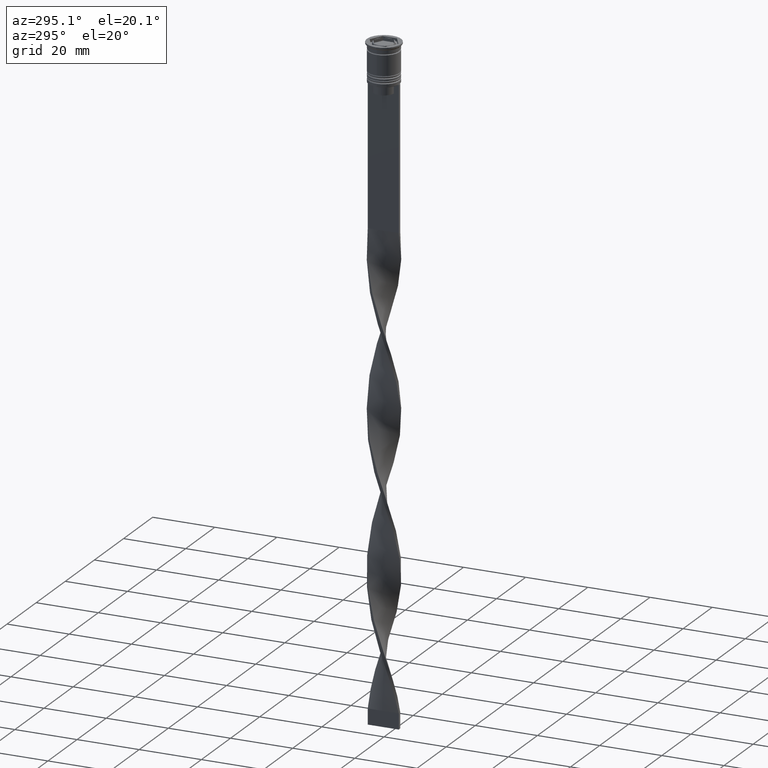
[diagram: clean part render]
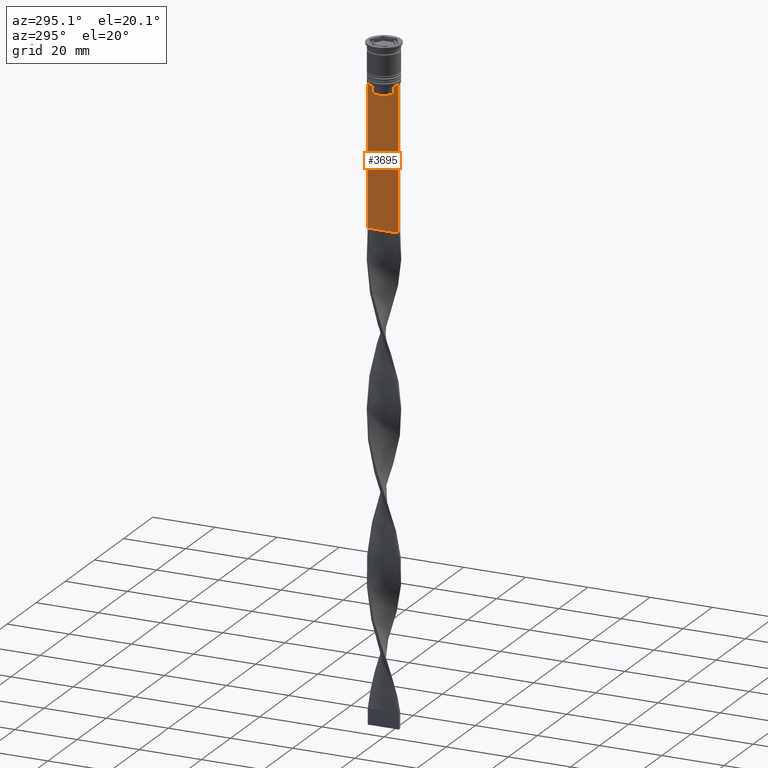
[diagram: same view with one face highlighted and labeled with its STEP entity id]
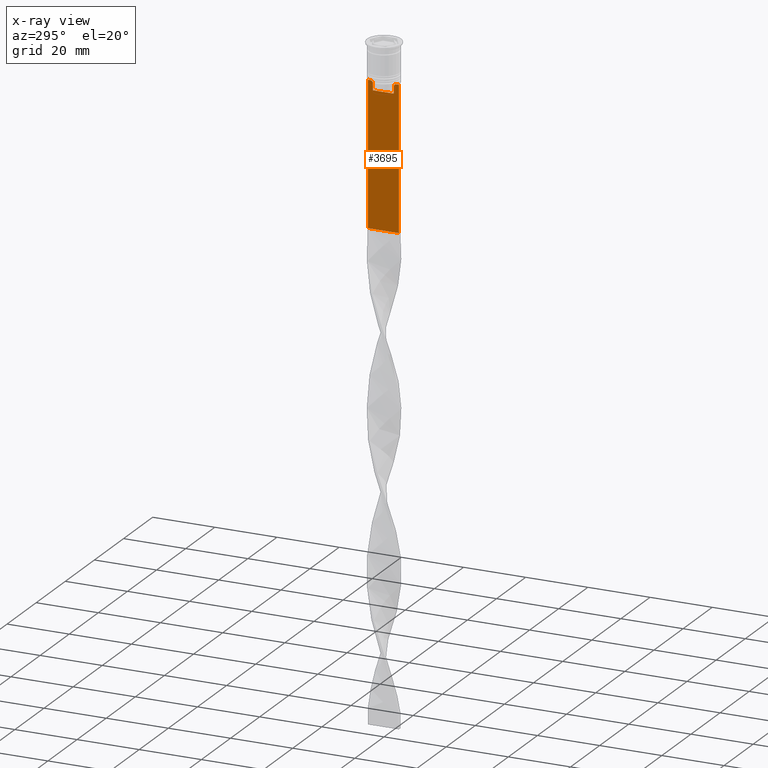
[diagram: x-ray of the same camera — body ghosted, the highlighted face saturated]
A machine part, auxiliary view. The second image highlights one B-rep face of the part: STEP entity #3695.
The next image is the same camera in x-ray: the body ghosted, the highlighted face saturated — about 0% of this face is hidden behind the body in this view.
In plain terms, the highlighted planar face has unit normal (-1, 0, 0).
Its self-contained STEP definition (entity closure, byte-faithful):
#18 = VECTOR ( 'NONE', #549, 1000.000000000000000 ) ;
#46 = LINE ( 'NONE', #2170, #351 ) ;
#65 = CARTESIAN_POINT ( 'NONE',  ( -0.5000000000000000000, 5.000000000000000888, -58.50000000000000000 ) ) ;
#75 = ORIENTED_EDGE ( 'NONE', *, *, #705, .F. ) ;
#155 = VECTOR ( 'NONE', #3729, 1000.000000000000000 ) ;
#184 = ORIENTED_EDGE ( 'NONE', *, *, #2067, .F. ) ;
#202 = LINE ( 'NONE', #2323, #3491 ) ;
#351 = VECTOR ( 'NONE', #3640, 1000.000000000000000 ) ;
#353 = VECTOR ( 'NONE', #468, 1000.000000000000000 ) ;
#407 = VERTEX_POINT ( 'NONE', #65 ) ;
#422 = CARTESIAN_POINT ( 'NONE',  ( -0.5000000000000000000, 3.363034344160045208, -13.00000000000000178 ) ) ;
#458 = LINE ( 'NONE', #1671, #541 ) ;
#468 = DIRECTION ( 'NONE',  ( 0.000000000000000000, -1.000000000000000000, 0.000000000000000000 ) ) ;
#487 = EDGE_CURVE ( 'NONE', #882, #2302, #46, .T. ) ;
#541 = VECTOR ( 'NONE', #2893, 1000.000000000000000 ) ;
#549 = DIRECTION ( 'NONE',  ( 0.000000000000000000, 1.000000000000000000, 0.000000000000000000 ) ) ;
#560 = B_SPLINE_CURVE_WITH_KNOTS ( 'NONE', 3,
 ( #1129, #1460, #810, #2319 ),
 .UNSPECIFIED., .F., .F.,
 ( 4, 4 ),
 ( 0.006644825462451552783, 0.007355321358912435097 ),
 .UNSPECIFIED. ) ;
#581 = VERTEX_POINT ( 'NONE', #2576 ) ;
#634 = ORIENTED_EDGE ( 'NONE', *, *, #3156, .F. ) ;
#647 = CARTESIAN_POINT ( 'NONE',  ( -0.5000000000000000000, -4.999999999999999112, -58.50000000000000000 ) ) ;
#699 = CARTESIAN_POINT ( 'NONE',  ( -0.5000000000000000000, 3.399999999999998135, -15.50000000000000000 ) ) ;
#705 = EDGE_CURVE ( 'NONE', #945, #882, #560, .T. ) ;
#747 = LINE ( 'NONE', #2853, #353 ) ;
#810 = CARTESIAN_POINT ( 'NONE',  ( -0.5000000000000000000, 3.531412678228260216, -12.83345231756357840 ) ) ;
#815 = LINE ( 'NONE', #1791, #3356 ) ;
#875 = CARTESIAN_POINT ( 'NONE',  ( -0.5000000000000000000, -4.999999999999999112, -12.50000000000000000 ) ) ;
#882 = VERTEX_POINT ( 'NONE', #422 ) ;
#945 = VERTEX_POINT ( 'NONE', #1656 ) ;
#1097 = CARTESIAN_POINT ( 'NONE',  ( -0.5000000000000000000, -3.363034344160045208, -13.00000000000000178 ) ) ;
#1123 = EDGE_CURVE ( 'NONE', #3910, #407, #815, .T. ) ;
#1129 = CARTESIAN_POINT ( 'NONE',  ( -0.5000000000000000000, 3.867815921162742754, -12.50000000000000000 ) ) ;
#1145 = EDGE_CURVE ( 'NONE', #1498, #581, #2615, .T. ) ;
#1203 = ORIENTED_EDGE ( 'NONE', *, *, #1276, .F. ) ;
#1216 = VERTEX_POINT ( 'NONE', #647 ) ;
#1233 = ORIENTED_EDGE ( 'NONE', *, *, #1546, .F. ) ;
#1276 = EDGE_CURVE ( 'NONE', #581, #2254, #202, .T. ) ;
#1286 = ORIENTED_EDGE ( 'NONE', *, *, #2810, .F. ) ;
#1327 = EDGE_CURVE ( 'NONE', #1698, #945, #3927, .T. ) ;
#1441 = CARTESIAN_POINT ( 'NONE',  ( -0.5000000000000000000, -4.999999999999999112, -58.50000000000000000 ) ) ;
#1460 = CARTESIAN_POINT ( 'NONE',  ( -0.5000000000000000000, 3.699657965831574913, -12.66677026074361301 ) ) ;
#1466 = CARTESIAN_POINT ( 'NONE',  ( -0.5000000000000000000, 4.874423042781575788, -12.50000000000000000 ) ) ;
#1498 = VERTEX_POINT ( 'NONE', #1097 ) ;
#1520 = EDGE_LOOP ( 'NONE', ( #75, #3601, #3325, #1548, #1286, #2631, #634, #1203, #1738, #1233, #184, #3712 ) ) ;
#1545 = LINE ( 'NONE', #3745, #1558 ) ;
#1546 = EDGE_CURVE ( 'NONE', #3937, #1498, #458, .T. ) ;
#1548 = ORIENTED_EDGE ( 'NONE', *, *, #1123, .T. ) ;
#1558 = VECTOR ( 'NONE', #3440, 1000.000000000000000 ) ;
#1578 = CARTESIAN_POINT ( 'NONE',  ( -0.5000000000000000000, -4.999999999999999112, -2.450124378879110054 ) ) ;
#1656 = CARTESIAN_POINT ( 'NONE',  ( -0.5000000000000000000, 3.867815921162742754, -12.50000000000000000 ) ) ;
#1671 = CARTESIAN_POINT ( 'NONE',  ( -0.5000000000000000000, -3.363034344160045208, 0.000000000000000000 ) ) ;
#1698 = VERTEX_POINT ( 'NONE', #1466 ) ;
#1738 = ORIENTED_EDGE ( 'NONE', *, *, #1145, .F. ) ;
#1791 = CARTESIAN_POINT ( 'NONE',  ( -0.5000000000000000000, 5.000000000000000888, -2.450124378879110054 ) ) ;
#2011 = CARTESIAN_POINT ( 'NONE',  ( -0.5000000000000000000, -3.363034344160045208, -13.00000000000000178 ) ) ;
#2067 = EDGE_CURVE ( 'NONE', #2302, #3937, #3751, .T. ) ;
#2109 = LINE ( 'NONE', #1441, #18 ) ;
#2116 = VERTEX_POINT ( 'NONE', #2861 ) ;
#2170 = CARTESIAN_POINT ( 'NONE',  ( -0.5000000000000000000, 3.363034344160045208, 0.000000000000000000 ) ) ;
#2254 = VERTEX_POINT ( 'NONE', #2279 ) ;
#2279 = CARTESIAN_POINT ( 'NONE',  ( -0.5000000000000000000, -4.874423042781575788, -12.50000000000000000 ) ) ;
#2292 = PLANE ( 'NONE',  #3173 ) ;
#2302 = VERTEX_POINT ( 'NONE', #3582 ) ;
#2319 = CARTESIAN_POINT ( 'NONE',  ( -0.5000000000000000000, 3.363034344160045208, -13.00000000000000178 ) ) ;
#2323 = CARTESIAN_POINT ( 'NONE',  ( -0.5000000000000000000, -4.999999999999999112, -12.50000000000000000 ) ) ;
#2385 = VECTOR ( 'NONE', #3649, 1000.000000000000000 ) ;
#2444 = LINE ( 'NONE', #3313, #2521 ) ;
#2454 = EDGE_CURVE ( 'NONE', #2116, #1216, #2444, .T. ) ;
#2521 = VECTOR ( 'NONE', #3017, 1000.000000000000000 ) ;
#2576 = CARTESIAN_POINT ( 'NONE',  ( -0.5000000000000000000, -3.867815921162742754, -12.50000000000000000 ) ) ;
#2579 = DIRECTION ( 'NONE',  ( -1.000000000000000000, 0.000000000000000000, 0.000000000000000000 ) ) ;
#2593 = EDGE_CURVE ( 'NONE', #3910, #1698, #1545, .T. ) ;
#2615 = B_SPLINE_CURVE_WITH_KNOTS ( 'NONE', 3,
 ( #2011, #2835, #3786, #3766 ),
 .UNSPECIFIED., .F., .F.,
 ( 4, 4 ),
 ( 0.01632394437298965648, 0.01703543518243618576 ),
 .UNSPECIFIED. ) ;
#2631 = ORIENTED_EDGE ( 'NONE', *, *, #2454, .F. ) ;
#2805 = DIRECTION ( 'NONE',  ( 0.000000000000000000, 0.000000000000000000, 1.000000000000000000 ) ) ;
#2810 = EDGE_CURVE ( 'NONE', #1216, #407, #2109, .T. ) ;
#2835 = CARTESIAN_POINT ( 'NONE',  ( -0.5000000000000000000, -3.531412985305424801, -12.83345201382502765 ) ) ;
#2853 = CARTESIAN_POINT ( 'NONE',  ( -0.5000000000000000000, -4.999999999999999112, -12.50000000000000000 ) ) ;
#2861 = CARTESIAN_POINT ( 'NONE',  ( -0.5000000000000000000, -4.999999999999999112, -12.50000000000000000 ) ) ;
#2893 = DIRECTION ( 'NONE',  ( -0.000000000000000000, -0.000000000000000000, 1.000000000000000000 ) ) ;
#3017 = DIRECTION ( 'NONE',  ( 0.000000000000000000, 0.000000000000000000, -1.000000000000000000 ) ) ;
#3156 = EDGE_CURVE ( 'NONE', #2254, #2116, #747, .T. ) ;
#3173 = AXIS2_PLACEMENT_3D ( 'NONE', #1578, #2579, #2805 ) ;
#3252 = DIRECTION ( 'NONE',  ( 0.000000000000000000, 0.000000000000000000, -1.000000000000000000 ) ) ;
#3313 = CARTESIAN_POINT ( 'NONE',  ( -0.5000000000000000000, -4.999999999999999112, -2.450124378879110054 ) ) ;
#3325 = ORIENTED_EDGE ( 'NONE', *, *, #2593, .F. ) ;
#3356 = VECTOR ( 'NONE', #3252, 1000.000000000000000 ) ;
#3407 = CARTESIAN_POINT ( 'NONE',  ( -0.5000000000000000000, -3.363034344160045652, -15.50000000000000000 ) ) ;
#3440 = DIRECTION ( 'NONE',  ( 0.000000000000000000, -1.000000000000000000, 0.000000000000000000 ) ) ;
#3491 = VECTOR ( 'NONE', #3881, 1000.000000000000000 ) ;
#3561 = CARTESIAN_POINT ( 'NONE',  ( -0.5000000000000000000, 5.000000000000000888, -12.50000000000000000 ) ) ;
#3582 = CARTESIAN_POINT ( 'NONE',  ( -0.5000000000000000000, 3.363034344160045652, -15.50000000000000000 ) ) ;
#3601 = ORIENTED_EDGE ( 'NONE', *, *, #1327, .F. ) ;
#3640 = DIRECTION ( 'NONE',  ( 0.000000000000000000, 0.000000000000000000, -1.000000000000000000 ) ) ;
#3649 = DIRECTION ( 'NONE',  ( 0.000000000000000000, -1.000000000000000000, 0.000000000000000000 ) ) ;
#3695 = ADVANCED_FACE ( 'NONE', ( #3860 ), #2292, .T. ) ;
#3712 = ORIENTED_EDGE ( 'NONE', *, *, #487, .F. ) ;
#3729 = DIRECTION ( 'NONE',  ( 0.000000000000000000, -1.000000000000000000, 0.000000000000000000 ) ) ;
#3745 = CARTESIAN_POINT ( 'NONE',  ( -0.5000000000000000000, -4.999999999999999112, -12.50000000000000000 ) ) ;
#3751 = LINE ( 'NONE', #699, #155 ) ;
#3766 = CARTESIAN_POINT ( 'NONE',  ( -0.5000000000000000000, -3.867815921162742754, -12.50000000000000000 ) ) ;
#3786 = CARTESIAN_POINT ( 'NONE',  ( -0.5000000000000000000, -3.699658232838647365, -12.66676999593996555 ) ) ;
#3860 = FACE_OUTER_BOUND ( 'NONE', #1520, .T. ) ;
#3881 = DIRECTION ( 'NONE',  ( 0.000000000000000000, -1.000000000000000000, 0.000000000000000000 ) ) ;
#3910 = VERTEX_POINT ( 'NONE', #3561 ) ;
#3927 = LINE ( 'NONE', #875, #2385 ) ;
#3937 = VERTEX_POINT ( 'NONE', #3407 ) ;